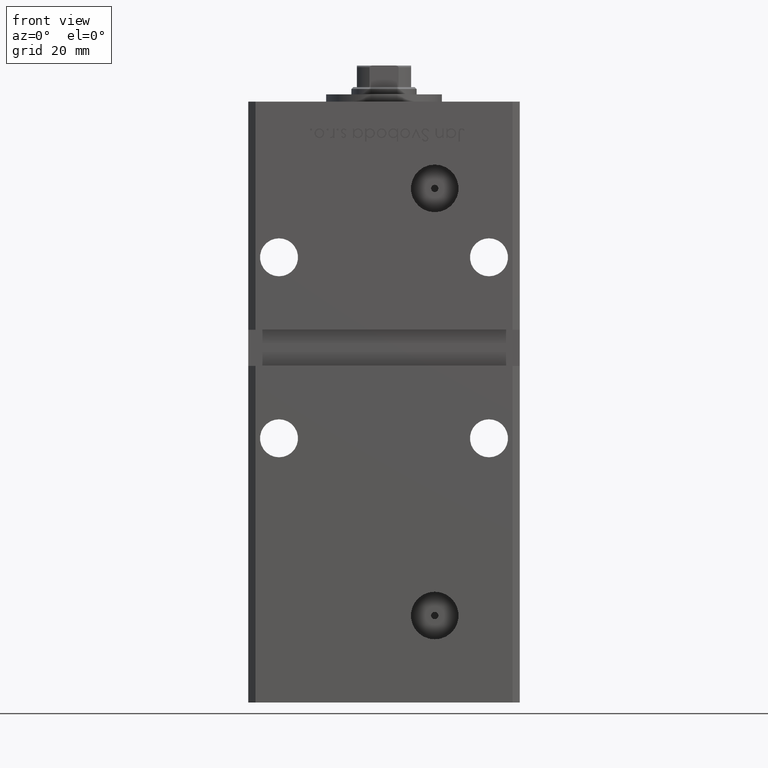
[diagram: clean part render]
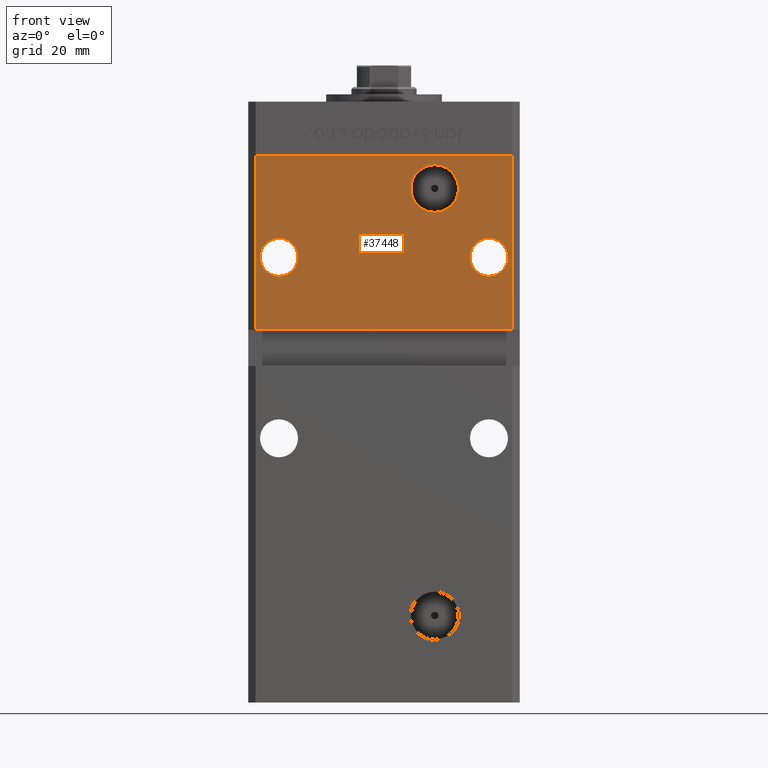
[diagram: same view with one face highlighted and labeled with its STEP entity id]
A machine part, front view. The second image highlights one B-rep face of the part: STEP entity #37448.
In plain terms, the highlighted planar face has unit normal (0, 1, 0).
Its self-contained STEP definition (entity closure, byte-faithful):
#1505 = AXIS2_PLACEMENT_3D ( 'NONE', #1641, #5669, #26091 ) ;
#1576 = AXIS2_PLACEMENT_3D ( 'NONE', #40074, #3254, #36050 ) ;
#1641 = CARTESIAN_POINT ( 'NONE',  ( -35.49999999999999289, -32.50000000000000000, 136.0000000000000000 ) ) ;
#2123 = EDGE_CURVE ( 'NONE', #37450, #38695, #43636, .T. ) ;
#3254 = DIRECTION ( 'NONE',  ( 0.000000000000000000, 1.000000000000000000, 0.000000000000000000 ) ) ;
#3406 = CARTESIAN_POINT ( 'NONE',  ( 35.49999999999999289, -32.50000000000000000, 88.00000000000002842 ) ) ;
#3435 = VERTEX_POINT ( 'NONE', #30269 ) ;
#3551 = ORIENTED_EDGE ( 'NONE', *, *, #18208, .T. ) ;
#3932 = VERTEX_POINT ( 'NONE', #36038 ) ;
#3983 = ORIENTED_EDGE ( 'NONE', *, *, #19047, .F. ) ;
#4030 = CARTESIAN_POINT ( 'NONE',  ( -28.99999999999999645, -32.50000000000000000, 108.0000000000000142 ) ) ;
#4274 = CARTESIAN_POINT ( 'NONE',  ( -28.99999999999999645, -32.50000000000000000, 102.7500000000000142 ) ) ;
#4357 = ORIENTED_EDGE ( 'NONE', *, *, #35693, .T. ) ;
#4436 = VECTOR ( 'NONE', #16836, 1000.000000000000000 ) ;
#4812 = DIRECTION ( 'NONE',  ( 0.000000000000000000, 1.000000000000000000, 0.000000000000000000 ) ) ;
#5418 = DIRECTION ( 'NONE',  ( 0.000000000000000000, 0.000000000000000000, 1.000000000000000000 ) ) ;
#5669 = DIRECTION ( 'NONE',  ( 0.000000000000000000, 1.000000000000000000, 0.000000000000000000 ) ) ;
#5787 = ORIENTED_EDGE ( 'NONE', *, *, #40052, .T. ) ;
#7425 = LINE ( 'NONE', #7697, #13969 ) ;
#7697 = CARTESIAN_POINT ( 'NONE',  ( -37.49999999999999289, -32.50000000000000000, 88.00000000000002842 ) ) ;
#8833 = AXIS2_PLACEMENT_3D ( 'NONE', #16530, #16788, #16270 ) ;
#9135 = AXIS2_PLACEMENT_3D ( 'NONE', #28682, #32723, #40525 ) ;
#12403 = AXIS2_PLACEMENT_3D ( 'NONE', #4030, #4812, #20426 ) ;
#12528 = CARTESIAN_POINT ( 'NONE',  ( 13.99999999999999112, -32.50000000000000000, 127.0000000000000000 ) ) ;
#13969 = VECTOR ( 'NONE', #40995, 1000.000000000000000 ) ;
#14624 = VECTOR ( 'NONE', #32950, 1000.000000000000000 ) ;
#14798 = FACE_BOUND ( 'NONE', #19262, .T. ) ;
#14863 = EDGE_CURVE ( 'NONE', #39587, #3435, #37504, .T. ) ;
#16270 = DIRECTION ( 'NONE',  ( 0.000000000000000000, 0.000000000000000000, -1.000000000000000000 ) ) ;
#16396 = CARTESIAN_POINT ( 'NONE',  ( 13.99999999999999112, -32.50000000000000000, 133.5800000000000125 ) ) ;
#16530 = CARTESIAN_POINT ( 'NONE',  ( 13.99999999999999112, -32.50000000000000000, 127.0000000000000000 ) ) ;
#16788 = DIRECTION ( 'NONE',  ( -0.000000000000000000, 1.000000000000000000, -0.000000000000000000 ) ) ;
#16836 = DIRECTION ( 'NONE',  ( -0.000000000000000000, -0.000000000000000000, -1.000000000000000000 ) ) ;
#17820 = CARTESIAN_POINT ( 'NONE',  ( -28.99999999999999645, -32.50000000000000000, 113.2500000000000142 ) ) ;
#18208 = EDGE_CURVE ( 'NONE', #28803, #3932, #36310, .T. ) ;
#19047 = EDGE_CURVE ( 'NONE', #42266, #3435, #7425, .T. ) ;
#19262 = EDGE_LOOP ( 'NONE', ( #5787, #3551 ) ) ;
#19593 = VECTOR ( 'NONE', #40751, 1000.000000000000000 ) ;
#19713 = AXIS2_PLACEMENT_3D ( 'NONE', #25837, #25566, #5418 ) ;
#20426 = DIRECTION ( 'NONE',  ( 0.000000000000000000, 0.000000000000000000, 1.000000000000000000 ) ) ;
#22604 = CARTESIAN_POINT ( 'NONE',  ( 28.99999999999999645, -32.50000000000000000, 102.7500000000000142 ) ) ;
#25566 = DIRECTION ( 'NONE',  ( 0.000000000000000000, 1.000000000000000000, 0.000000000000000000 ) ) ;
#25837 = CARTESIAN_POINT ( 'NONE',  ( 28.99999999999999645, -32.50000000000000000, 108.0000000000000142 ) ) ;
#26091 = DIRECTION ( 'NONE',  ( 0.000000000000000000, -0.000000000000000000, 1.000000000000000000 ) ) ;
#26536 = EDGE_CURVE ( 'NONE', #30111, #50404, #27851, .T. ) ;
#27851 = CIRCLE ( 'NONE', #12403, 5.250000000000004441 ) ;
#28031 = CIRCLE ( 'NONE', #9135, 5.250000000000004441 ) ;
#28404 = VERTEX_POINT ( 'NONE', #46913 ) ;
#28682 = CARTESIAN_POINT ( 'NONE',  ( -28.99999999999999645, -32.50000000000000000, 108.0000000000000142 ) ) ;
#28803 = VERTEX_POINT ( 'NONE', #16396 ) ;
#29659 = ORIENTED_EDGE ( 'NONE', *, *, #49123, .T. ) ;
#29815 = CARTESIAN_POINT ( 'NONE',  ( -35.49999999999999289, -32.50000000000000000, 136.0000000000000000 ) ) ;
#30111 = VERTEX_POINT ( 'NONE', #17820 ) ;
#30269 = CARTESIAN_POINT ( 'NONE',  ( -35.49999999999999289, -32.50000000000000000, 88.00000000000002842 ) ) ;
#31402 = CARTESIAN_POINT ( 'NONE',  ( 28.99999999999999645, -32.50000000000000000, 113.2500000000000142 ) ) ;
#32482 = CIRCLE ( 'NONE', #46191, 6.580000000000002736 ) ;
#32723 = DIRECTION ( 'NONE',  ( 0.000000000000000000, 1.000000000000000000, 0.000000000000000000 ) ) ;
#32950 = DIRECTION ( 'NONE',  ( 1.000000000000000000, 0.000000000000000000, 0.000000000000000000 ) ) ;
#33230 = CARTESIAN_POINT ( 'NONE',  ( -35.49999999999999289, -32.50000000000000000, 136.0000000000000000 ) ) ;
#33702 = ORIENTED_EDGE ( 'NONE', *, *, #2123, .T. ) ;
#33723 = CARTESIAN_POINT ( 'NONE',  ( -35.49999999999999289, -32.50000000000000000, 136.0000000000000000 ) ) ;
#33786 = EDGE_LOOP ( 'NONE', ( #29659, #33702 ) ) ;
#33947 = ORIENTED_EDGE ( 'NONE', *, *, #26536, .T. ) ;
#34096 = EDGE_CURVE ( 'NONE', #28404, #42266, #36708, .T. ) ;
#34215 = EDGE_LOOP ( 'NONE', ( #33947, #4357 ) ) ;
#34963 = FACE_BOUND ( 'NONE', #34215, .T. ) ;
#35693 = EDGE_CURVE ( 'NONE', #50404, #30111, #28031, .T. ) ;
#36038 = CARTESIAN_POINT ( 'NONE',  ( 13.99999999999999112, -32.50000000000000000, 120.4200000000000017 ) ) ;
#36050 = DIRECTION ( 'NONE',  ( 0.000000000000000000, 0.000000000000000000, 1.000000000000000000 ) ) ;
#36310 = CIRCLE ( 'NONE', #8833, 6.580000000000002736 ) ;
#36708 = LINE ( 'NONE', #45560, #19593 ) ;
#37233 = LINE ( 'NONE', #33723, #14624 ) ;
#37448 = ADVANCED_FACE ( 'NONE', ( #43293, #34963, #50840, #14798 ), #51639, .F. ) ;
#37450 = VERTEX_POINT ( 'NONE', #22604 ) ;
#37504 = LINE ( 'NONE', #33230, #4436 ) ;
#38695 = VERTEX_POINT ( 'NONE', #31402 ) ;
#39587 = VERTEX_POINT ( 'NONE', #29815 ) ;
#40052 = EDGE_CURVE ( 'NONE', #3932, #28803, #32482, .T. ) ;
#40074 = CARTESIAN_POINT ( 'NONE',  ( 28.99999999999999645, -32.50000000000000000, 108.0000000000000142 ) ) ;
#40503 = DIRECTION ( 'NONE',  ( -0.000000000000000000, 1.000000000000000000, -0.000000000000000000 ) ) ;
#40525 = DIRECTION ( 'NONE',  ( 0.000000000000000000, 0.000000000000000000, 1.000000000000000000 ) ) ;
#40751 = DIRECTION ( 'NONE',  ( -0.000000000000000000, -0.000000000000000000, -1.000000000000000000 ) ) ;
#40995 = DIRECTION ( 'NONE',  ( -1.000000000000000000, -0.000000000000000000, -0.000000000000000000 ) ) ;
#41033 = ORIENTED_EDGE ( 'NONE', *, *, #51251, .F. ) ;
#41054 = ORIENTED_EDGE ( 'NONE', *, *, #34096, .F. ) ;
#42266 = VERTEX_POINT ( 'NONE', #3406 ) ;
#43293 = FACE_BOUND ( 'NONE', #33786, .T. ) ;
#43636 = CIRCLE ( 'NONE', #1576, 5.250000000000004441 ) ;
#43751 = CIRCLE ( 'NONE', #19713, 5.250000000000004441 ) ;
#45560 = CARTESIAN_POINT ( 'NONE',  ( 35.49999999999999289, -32.50000000000000000, 136.0000000000000000 ) ) ;
#46191 = AXIS2_PLACEMENT_3D ( 'NONE', #12528, #40503, #48837 ) ;
#46913 = CARTESIAN_POINT ( 'NONE',  ( 35.49999999999999289, -32.50000000000000000, 136.0000000000000000 ) ) ;
#48837 = DIRECTION ( 'NONE',  ( 0.000000000000000000, 0.000000000000000000, -1.000000000000000000 ) ) ;
#49123 = EDGE_CURVE ( 'NONE', #38695, #37450, #43751, .T. ) ;
#50404 = VERTEX_POINT ( 'NONE', #4274 ) ;
#50558 = EDGE_LOOP ( 'NONE', ( #52106, #3983, #41054, #41033 ) ) ;
#50840 = FACE_OUTER_BOUND ( 'NONE', #50558, .T. ) ;
#51251 = EDGE_CURVE ( 'NONE', #39587, #28404, #37233, .T. ) ;
#51639 = PLANE ( 'NONE',  #1505 ) ;
#52106 = ORIENTED_EDGE ( 'NONE', *, *, #14863, .T. ) ;